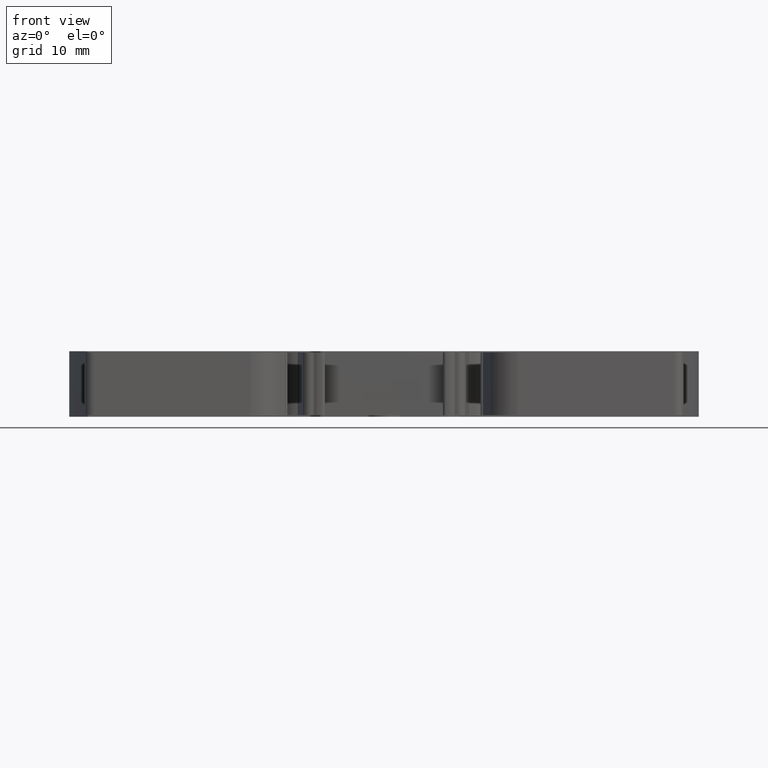
[diagram: clean part render]
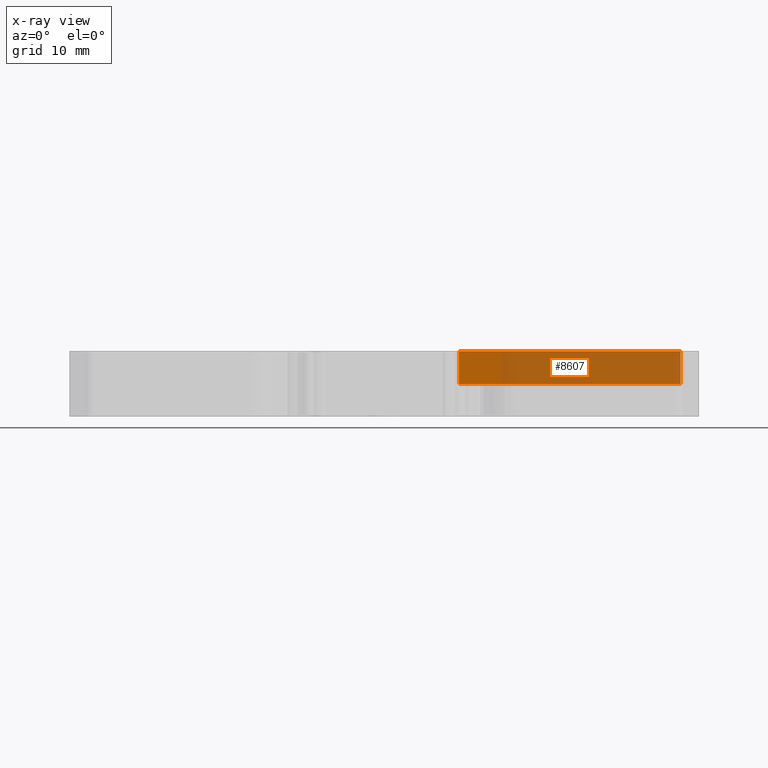
[diagram: x-ray — body ghosted, one internal face saturated and labeled with its STEP entity id]
A machine part, front view, then the same camera in x-ray: the body is ghosted and one INTERNAL B-rep face — a face not visible from any outside direction — is saturated and labeled: STEP entity #8607.
In plain terms, the highlighted planar face has unit normal (0, -1, 0).
Its self-contained STEP definition (entity closure, byte-faithful):
#2091 = VECTOR ( 'NONE', #3759, 1000.000000000000000 ) ;
#2113 = VECTOR ( 'NONE', #4038, 1000.000000000000000 ) ;
#2146 = VECTOR ( 'NONE', #4034, 1000.000000000000000 ) ;
#2239 = ORIENTED_EDGE ( 'NONE', *, *, #8810, .T. ) ;
#3747 = LINE ( 'NONE', #3784, #2091 ) ;
#3759 = DIRECTION ( 'NONE',  ( -1.000000000000000000, -3.059809615179970300E-015, 0.0000000000000000000 ) ) ;
#3784 = CARTESIAN_POINT ( 'NONE',  ( 1342.249795858346000, 408.3426663702728100, 5.250000000000004400 ) ) ;
#3930 = LINE ( 'NONE', #4054, #2113 ) ;
#4017 = LINE ( 'NONE', #4067, #2146 ) ;
#4034 = DIRECTION ( 'NONE',  ( 1.000000000000000000, 3.059809615179970300E-015, 0.0000000000000000000 ) ) ;
#4038 = DIRECTION ( 'NONE',  ( 0.0000000000000000000, 0.0000000000000000000, 1.000000000000000000 ) ) ;
#4054 = CARTESIAN_POINT ( 'NONE',  ( 1378.533851543289800, 408.3426663702729200, -113.7507434596614900 ) ) ;
#4067 = CARTESIAN_POINT ( 'NONE',  ( 1298.507053994932000, 408.3426663702727000, 10.60000000000000000 ) ) ;
#4272 = ORIENTED_EDGE ( 'NONE', *, *, #8819, .F. ) ;
#4331 = ORIENTED_EDGE ( 'NONE', *, *, #8781, .F. ) ;
#4348 = ORIENTED_EDGE ( 'NONE', *, *, #11165, .F. ) ;
#5169 = EDGE_LOOP ( 'NONE', ( #4331, #2239, #4272, #4348 ) ) ;
#5826 = VERTEX_POINT ( 'NONE', #7447 ) ;
#5933 = VERTEX_POINT ( 'NONE', #7476 ) ;
#5986 = VERTEX_POINT ( 'NONE', #7529 ) ;
#6037 = VERTEX_POINT ( 'NONE', #7518 ) ;
#7447 = CARTESIAN_POINT ( 'NONE',  ( 1342.249795858346000, 408.3426663702728100, 10.59999999999999800 ) ) ;
#7476 = CARTESIAN_POINT ( 'NONE',  ( 1342.249795858346000, 408.3426663702729800, 5.250000000000004400 ) ) ;
#7518 = CARTESIAN_POINT ( 'NONE',  ( 1378.533851543289800, 408.3426663702729200, 10.59999999999999800 ) ) ;
#7529 = CARTESIAN_POINT ( 'NONE',  ( 1378.533851543289800, 408.3426663702729200, 5.250000000000002700 ) ) ;
#7981 = FACE_OUTER_BOUND ( 'NONE', #5169, .T. ) ;
#7982 = CARTESIAN_POINT ( 'NONE',  ( 1342.249795858346000, 408.3426663702728100, -113.7507434596614900 ) ) ;
#7983 = DIRECTION ( 'NONE',  ( 3.059809615179970300E-015, -1.000000000000000000, 0.0000000000000000000 ) ) ;
#7992 = DIRECTION ( 'NONE',  ( 1.000000000000000000, 3.059809615179970300E-015, 0.0000000000000000000 ) ) ;
#8003 = PLANE ( 'NONE',  #11345 ) ;
#8607 = ADVANCED_FACE ( 'NONE', ( #7981 ), #8003, .T. ) ;
#8781 = EDGE_CURVE ( 'NONE', #5986, #5933, #3747, .T. ) ;
#8810 = EDGE_CURVE ( 'NONE', #5986, #6037, #3930, .T. ) ;
#8819 = EDGE_CURVE ( 'NONE', #5826, #6037, #4017, .T. ) ;
#11165 = EDGE_CURVE ( 'NONE', #5933, #5826, #15511, .T. ) ;
#11345 = AXIS2_PLACEMENT_3D ( 'NONE', #7982, #7983, #7992 ) ;
#12057 = VECTOR ( 'NONE', #15558, 1000.000000000000000 ) ;
#15511 = LINE ( 'NONE', #15553, #12057 ) ;
#15553 = CARTESIAN_POINT ( 'NONE',  ( 1342.249795858346000, 408.3426663702728100, -113.7507434596614900 ) ) ;
#15558 = DIRECTION ( 'NONE',  ( 0.0000000000000000000, 0.0000000000000000000, 1.000000000000000000 ) ) ;